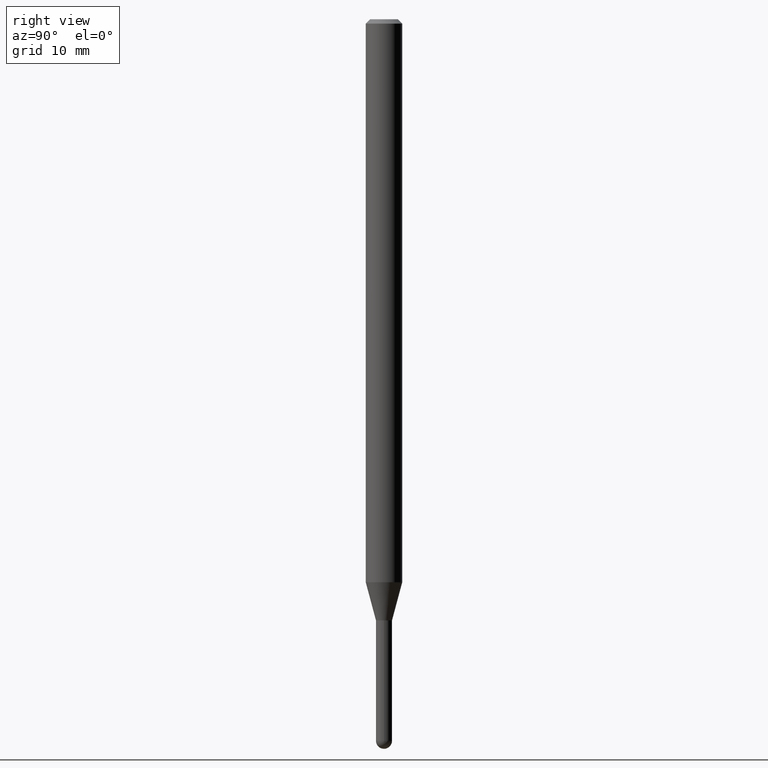
[diagram: clean part render]
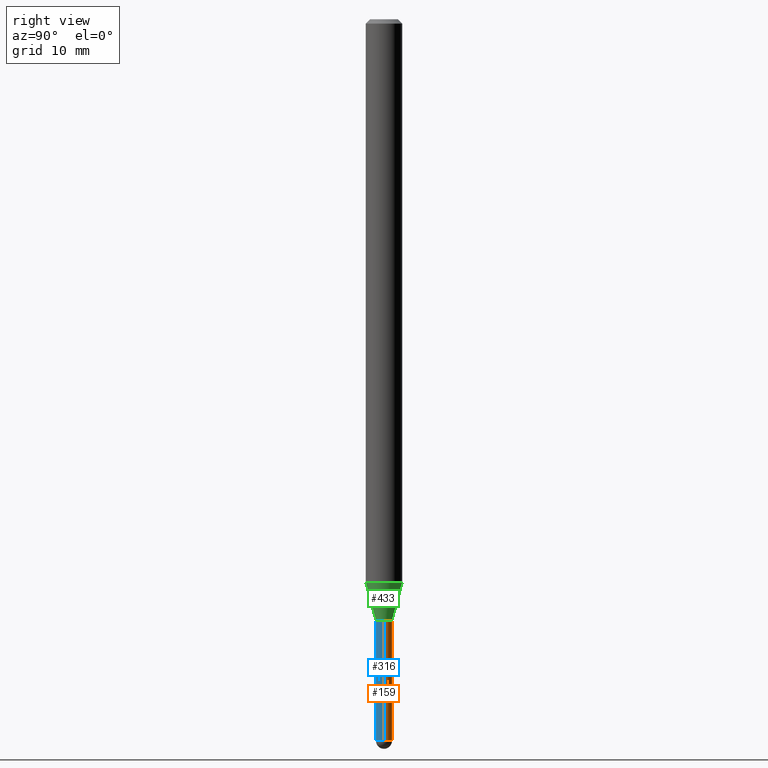
[diagram: same view with three faces highlighted in distinct colors, each labeled with its STEP entity id]
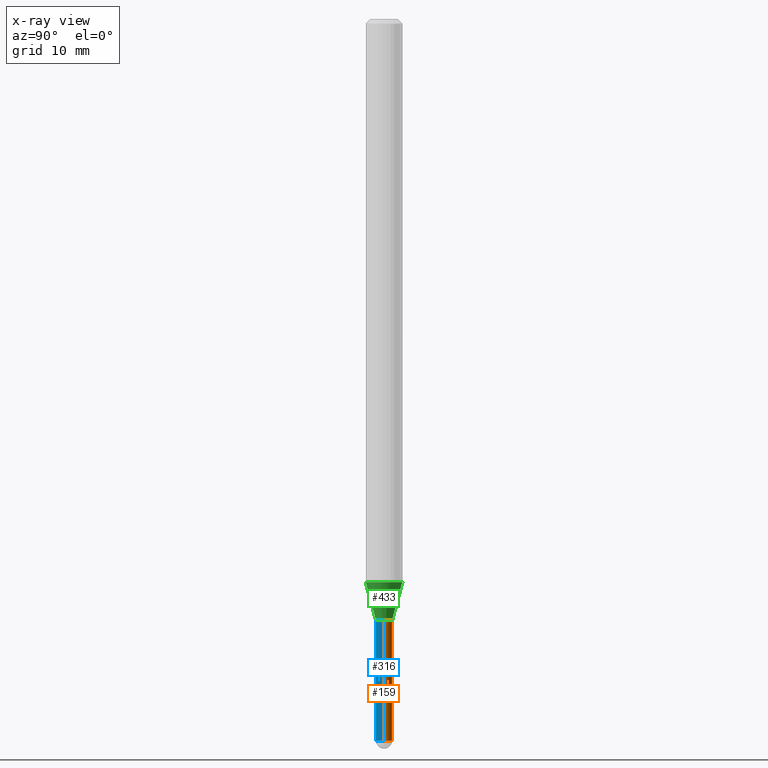
[diagram: x-ray of the same camera — body ghosted, the three highlighted faces saturated]
A machine part, right view with three faces highlighted in distinct colors.
The next image is the same camera in x-ray (body ghosted, the three faces saturated) — at least one of them is partly hidden behind the body in this view.
Their STEP definitions:

[orange] entity #159 — the highlighted cylindrical surface (edge-blend (fillet) strip) has radius 0.6985 mm, axis along (-0, 0, 1).
#1 = VERTEX_POINT ( 'NONE', #488 ) ;
#16 = EDGE_CURVE ( 'NONE', #385, #1, #101, .T. ) ;
#17 = EDGE_LOOP ( 'NONE', ( #133, #444, #333, #289, #85 ) ) ;
#28 = VECTOR ( 'NONE', #188, 39.37007874015748143 ) ;
#36 = CARTESIAN_POINT ( 'NONE',  ( -0.02750000000000000014, -7.717170331819249590E-15, -2.060000000000000053 ) ) ;
#41 = AXIS2_PLACEMENT_3D ( 'NONE', #511, #463, #162 ) ;
#54 = AXIS2_PLACEMENT_3D ( 'NONE', #498, #379, #372 ) ;
#85 = ORIENTED_EDGE ( 'NONE', *, *, #205, .T. ) ;
#92 = EDGE_CURVE ( 'NONE', #1, #292, #407, .T. ) ;
#99 = CARTESIAN_POINT ( 'NONE',  ( 0.02750000000000000014, -8.104601057789650990E-15, -2.472499999999999254 ) ) ;
#101 = LINE ( 'NONE', #181, #28 ) ;
#109 = DIRECTION ( 'NONE',  ( 1.000000000000000000, -6.982962677686266711E-15, 4.876176775795935793E-29 ) ) ;
#133 = ORIENTED_EDGE ( 'NONE', *, *, #478, .T. ) ;
#159 = ADVANCED_FACE ( 'NONE', ( #493 ), #184, .T. ) ;
#161 = VERTEX_POINT ( 'NONE', #266 ) ;
#162 = DIRECTION ( 'NONE',  ( 1.000000000000000000, -6.982962677686279332E-15, 0.000000000000000000 ) ) ;
#169 = CARTESIAN_POINT ( 'NONE',  ( -0.02750000000000000014, 1.953992523340275521E-16, -1.352707149820099181E-30 ) ) ;
#174 = DIRECTION ( 'NONE',  ( 1.000000000000000000, -6.982962677686279332E-15, 0.000000000000000000 ) ) ;
#181 = CARTESIAN_POINT ( 'NONE',  ( 0.02750000000000000014, -1.920314736363723444E-16, 1.340948613343882413E-30 ) ) ;
#184 = CYLINDRICAL_SURFACE ( 'NONE', #423, 0.02750000000000000014 ) ;
#188 = DIRECTION ( 'NONE',  ( -2.445468806185136877E-29, 3.491481338843145188E-15, 1.000000000000000000 ) ) ;
#203 = CIRCLE ( 'NONE', #458, 0.02750000000000000014 ) ;
#205 = EDGE_CURVE ( 'NONE', #385, #480, #438, .T. ) ;
#219 = EDGE_CURVE ( 'NONE', #161, #292, #281, .T. ) ;
#266 = CARTESIAN_POINT ( 'NONE',  ( -0.02750000000000000014, -7.717170331819249590E-15, -2.472499999999999254 ) ) ;
#281 = LINE ( 'NONE', #169, #356 ) ;
#289 = ORIENTED_EDGE ( 'NONE', *, *, #16, .F. ) ;
#292 = VERTEX_POINT ( 'NONE', #36 ) ;
#309 = CARTESIAN_POINT ( 'NONE',  ( 0.000000000000000000, 0.000000000000000000, 0.000000000000000000 ) ) ;
#332 = DIRECTION ( 'NONE',  ( -2.445468806185136597E-29, 3.491481338843145583E-15, 1.000000000000000000 ) ) ;
#333 = ORIENTED_EDGE ( 'NONE', *, *, #92, .F. ) ;
#334 = CARTESIAN_POINT ( 'NONE',  ( 6.046421623292748621E-29, -8.632687610289675147E-15, -2.472499999999999254 ) ) ;
#356 = VECTOR ( 'NONE', #476, 39.37007874015748143 ) ;
#372 = DIRECTION ( 'NONE',  ( 1.000000000000000000, -6.982962677686279332E-15, 0.000000000000000000 ) ) ;
#379 = DIRECTION ( 'NONE',  ( -2.445468806185136597E-29, 3.491481338843145583E-15, 1.000000000000000000 ) ) ;
#385 = VERTEX_POINT ( 'NONE', #99 ) ;
#407 = CIRCLE ( 'NONE', #54, 0.02750000000000000014 ) ;
#423 = AXIS2_PLACEMENT_3D ( 'NONE', #309, #460, #109 ) ;
#438 = CIRCLE ( 'NONE', #41, 0.02750000000000000014 ) ;
#443 = CARTESIAN_POINT ( 'NONE',  ( 1.920314736364331113E-16, 0.02749999999999141673, -2.472499999999999254 ) ) ;
#444 = ORIENTED_EDGE ( 'NONE', *, *, #219, .T. ) ;
#458 = AXIS2_PLACEMENT_3D ( 'NONE', #334, #332, #174 ) ;
#460 = DIRECTION ( 'NONE',  ( -2.445468806185136597E-29, 3.491481338843145583E-15, 1.000000000000000000 ) ) ;
#463 = DIRECTION ( 'NONE',  ( -2.445468806185136597E-29, 3.491481338843145583E-15, 1.000000000000000000 ) ) ;
#476 = DIRECTION ( 'NONE',  ( -2.445468806185136877E-29, 3.491481338843145188E-15, 1.000000000000000000 ) ) ;
#478 = EDGE_CURVE ( 'NONE', #480, #161, #203, .T. ) ;
#480 = VERTEX_POINT ( 'NONE', #443 ) ;
#488 = CARTESIAN_POINT ( 'NONE',  ( 0.02750000000000000014, -7.384483031653253552E-15, -2.060000000000000053 ) ) ;
#493 = FACE_OUTER_BOUND ( 'NONE', #17, .T. ) ;
#498 = CARTESIAN_POINT ( 'NONE',  ( 5.037665740741381905E-29, -7.192451558016880271E-15, -2.060000000000000053 ) ) ;
#511 = CARTESIAN_POINT ( 'NONE',  ( 6.046421623292748621E-29, -8.632687610289675147E-15, -2.472499999999999254 ) ) ;

[blue] entity #316 — the highlighted cylindrical surface (edge-blend (fillet) strip) has radius 0.6985 mm, axis along (-0, 0, 1).
#1 = VERTEX_POINT ( 'NONE', #488 ) ;
#16 = EDGE_CURVE ( 'NONE', #385, #1, #101, .T. ) ;
#28 = VECTOR ( 'NONE', #188, 39.37007874015748143 ) ;
#36 = CARTESIAN_POINT ( 'NONE',  ( -0.02750000000000000014, -7.717170331819249590E-15, -2.060000000000000053 ) ) ;
#50 = CARTESIAN_POINT ( 'NONE',  ( 0.000000000000000000, 0.000000000000000000, 0.000000000000000000 ) ) ;
#51 = ORIENTED_EDGE ( 'NONE', *, *, #78, .T. ) ;
#74 = DIRECTION ( 'NONE',  ( 1.000000000000000000, -6.982962677686279332E-15, 0.000000000000000000 ) ) ;
#78 = EDGE_CURVE ( 'NONE', #360, #385, #456, .T. ) ;
#99 = CARTESIAN_POINT ( 'NONE',  ( 0.02750000000000000014, -8.104601057789650990E-15, -2.472499999999999254 ) ) ;
#101 = LINE ( 'NONE', #181, #28 ) ;
#104 = DIRECTION ( 'NONE',  ( -2.445468806185136597E-29, 3.491481338843145583E-15, 1.000000000000000000 ) ) ;
#126 = DIRECTION ( 'NONE',  ( 1.000000000000000000, -6.982962677686279332E-15, 0.000000000000000000 ) ) ;
#131 = ORIENTED_EDGE ( 'NONE', *, *, #16, .T. ) ;
#158 = DIRECTION ( 'NONE',  ( -2.445468806185136597E-29, 3.491481338843145583E-15, 1.000000000000000000 ) ) ;
#161 = VERTEX_POINT ( 'NONE', #266 ) ;
#166 = CARTESIAN_POINT ( 'NONE',  ( 6.046421623292748621E-29, -8.632687610289675147E-15, -2.472499999999999254 ) ) ;
#169 = CARTESIAN_POINT ( 'NONE',  ( -0.02750000000000000014, 1.953992523340275521E-16, -1.352707149820099181E-30 ) ) ;
#175 = EDGE_LOOP ( 'NONE', ( #251, #362, #51, #131, #430 ) ) ;
#181 = CARTESIAN_POINT ( 'NONE',  ( 0.02750000000000000014, -1.920314736363723444E-16, 1.340948613343882413E-30 ) ) ;
#187 = CIRCLE ( 'NONE', #390, 0.02750000000000000014 ) ;
#188 = DIRECTION ( 'NONE',  ( -2.445468806185136877E-29, 3.491481338843145188E-15, 1.000000000000000000 ) ) ;
#202 = DIRECTION ( 'NONE',  ( -2.445468806185136597E-29, 3.491481338843145583E-15, 1.000000000000000000 ) ) ;
#219 = EDGE_CURVE ( 'NONE', #161, #292, #281, .T. ) ;
#232 = EDGE_CURVE ( 'NONE', #161, #360, #187, .T. ) ;
#233 = CYLINDRICAL_SURFACE ( 'NONE', #346, 0.02750000000000000014 ) ;
#251 = ORIENTED_EDGE ( 'NONE', *, *, #219, .F. ) ;
#261 = DIRECTION ( 'NONE',  ( -2.445468806185136597E-29, 3.491481338843145583E-15, 1.000000000000000000 ) ) ;
#266 = CARTESIAN_POINT ( 'NONE',  ( -0.02750000000000000014, -7.717170331819249590E-15, -2.472499999999999254 ) ) ;
#276 = AXIS2_PLACEMENT_3D ( 'NONE', #348, #261, #74 ) ;
#281 = LINE ( 'NONE', #169, #356 ) ;
#282 = FACE_OUTER_BOUND ( 'NONE', #175, .T. ) ;
#288 = DIRECTION ( 'NONE',  ( 1.000000000000000000, -6.982962677686266711E-15, 4.876176775795935793E-29 ) ) ;
#292 = VERTEX_POINT ( 'NONE', #36 ) ;
#299 = CARTESIAN_POINT ( 'NONE',  ( -1.953992523339674261E-16, -0.02750000000000868070, -2.472499999999999254 ) ) ;
#316 = ADVANCED_FACE ( 'NONE', ( #282 ), #233, .T. ) ;
#330 = CIRCLE ( 'NONE', #339, 0.02750000000000000014 ) ;
#339 = AXIS2_PLACEMENT_3D ( 'NONE', #454, #104, #484 ) ;
#346 = AXIS2_PLACEMENT_3D ( 'NONE', #50, #202, #288 ) ;
#348 = CARTESIAN_POINT ( 'NONE',  ( 6.046421623292748621E-29, -8.632687610289675147E-15, -2.472499999999999254 ) ) ;
#356 = VECTOR ( 'NONE', #476, 39.37007874015748143 ) ;
#360 = VERTEX_POINT ( 'NONE', #299 ) ;
#362 = ORIENTED_EDGE ( 'NONE', *, *, #232, .T. ) ;
#385 = VERTEX_POINT ( 'NONE', #99 ) ;
#390 = AXIS2_PLACEMENT_3D ( 'NONE', #166, #158, #126 ) ;
#430 = ORIENTED_EDGE ( 'NONE', *, *, #496, .F. ) ;
#454 = CARTESIAN_POINT ( 'NONE',  ( 5.037665740741381905E-29, -7.192451558016880271E-15, -2.060000000000000053 ) ) ;
#456 = CIRCLE ( 'NONE', #276, 0.02750000000000000014 ) ;
#476 = DIRECTION ( 'NONE',  ( -2.445468806185136877E-29, 3.491481338843145188E-15, 1.000000000000000000 ) ) ;
#484 = DIRECTION ( 'NONE',  ( 1.000000000000000000, -6.982962677686279332E-15, 0.000000000000000000 ) ) ;
#488 = CARTESIAN_POINT ( 'NONE',  ( 0.02750000000000000014, -7.384483031653253552E-15, -2.060000000000000053 ) ) ;
#496 = EDGE_CURVE ( 'NONE', #292, #1, #330, .T. ) ;

[green] entity #433 — the highlighted conical surface has half-angle 15 deg.
#2 = AXIS2_PLACEMENT_3D ( 'NONE', #132, #12, #290 ) ;
#12 = DIRECTION ( 'NONE',  ( -2.445457341332455997E-29, 3.491497757164723116E-15, 1.000000000000000000 ) ) ;
#26 = DIRECTION ( 'NONE',  ( -6.982962677686265922E-15, -1.000000000000000000, 0.000000000000000000 ) ) ;
#37 = ORIENTED_EDGE ( 'NONE', *, *, #465, .T. ) ;
#39 = CONICAL_SURFACE ( 'NONE', #2, 0.02750000000000019790, 0.2617993877991579010 ) ;
#47 = CIRCLE ( 'NONE', #501, 0.06250000000000000000 ) ;
#59 = FACE_OUTER_BOUND ( 'NONE', #468, .T. ) ;
#82 = VERTEX_POINT ( 'NONE', #226 ) ;
#83 = ORIENTED_EDGE ( 'NONE', *, *, #338, .F. ) ;
#84 = CARTESIAN_POINT ( 'NONE',  ( 4.718212136549045981E-29, -6.736419733910545190E-15, -1.929378221735094545 ) ) ;
#96 = LINE ( 'NONE', #263, #136 ) ;
#107 = CARTESIAN_POINT ( 'NONE',  ( 5.037642123144859404E-29, -7.192485379759330660E-15, -2.060000000000000053 ) ) ;
#111 = DIRECTION ( 'NONE',  ( -2.445457341332455997E-29, 3.491497757164723116E-15, 1.000000000000000000 ) ) ;
#127 = ORIENTED_EDGE ( 'NONE', *, *, #238, .F. ) ;
#132 = CARTESIAN_POINT ( 'NONE',  ( 5.037642123144859404E-29, -7.192485379759330660E-15, -2.060000000000000053 ) ) ;
#136 = VECTOR ( 'NONE', #216, 39.37007874015748143 ) ;
#142 = CARTESIAN_POINT ( 'NONE',  ( -1.920314736363233118E-16, -0.02750000000000739006, -2.060000000000000053 ) ) ;
#144 = CIRCLE ( 'NONE', #221, 0.02750000000000019790 ) ;
#151 = EDGE_CURVE ( 'NONE', #391, #82, #144, .T. ) ;
#192 = DIRECTION ( 'NONE',  ( -1.807323732225381810E-15, -0.2588190451025255689, 0.9659258262890669799 ) ) ;
#207 = LINE ( 'NONE', #248, #307 ) ;
#216 = DIRECTION ( 'NONE',  ( 1.839019923739652775E-15, 0.2588190451025323413, 0.9659258262890650926 ) ) ;
#221 = AXIS2_PLACEMENT_3D ( 'NONE', #107, #111, #26 ) ;
#226 = CARTESIAN_POINT ( 'NONE',  ( 3.197442310920946221E-16, 0.02749999999999300573, -2.060000000000000053 ) ) ;
#238 = EDGE_CURVE ( 'NONE', #241, #388, #47, .T. ) ;
#241 = VERTEX_POINT ( 'NONE', #320 ) ;
#246 = DIRECTION ( 'NONE',  ( -6.982962677686265922E-15, -1.000000000000000000, 4.370956789862821150E-15 ) ) ;
#248 = CARTESIAN_POINT ( 'NONE',  ( -1.920314736363233118E-16, -0.02750000000000739006, -2.060000000000000053 ) ) ;
#257 = CARTESIAN_POINT ( 'NONE',  ( 4.440892098501095534E-16, 0.06249999999999324846, -1.929378221735094767 ) ) ;
#263 = CARTESIAN_POINT ( 'NONE',  ( 1.953992523340792964E-16, 0.02749999999999300573, -2.060000000000000053 ) ) ;
#290 = DIRECTION ( 'NONE',  ( -6.982962677686265922E-15, -1.000000000000000000, 0.000000000000000000 ) ) ;
#307 = VECTOR ( 'NONE', #192, 39.37007874015748854 ) ;
#320 = CARTESIAN_POINT ( 'NONE',  ( -4.364351673553446829E-16, -0.06250000000000677236, -1.929378221735094323 ) ) ;
#338 = EDGE_CURVE ( 'NONE', #391, #241, #207, .T. ) ;
#355 = DIRECTION ( 'NONE',  ( -2.445457341332455997E-29, 3.491497757164723116E-15, 1.000000000000000000 ) ) ;
#388 = VERTEX_POINT ( 'NONE', #257 ) ;
#391 = VERTEX_POINT ( 'NONE', #142 ) ;
#410 = ORIENTED_EDGE ( 'NONE', *, *, #151, .T. ) ;
#433 = ADVANCED_FACE ( 'NONE', ( #59 ), #39, .T. ) ;
#465 = EDGE_CURVE ( 'NONE', #82, #388, #96, .T. ) ;
#468 = EDGE_LOOP ( 'NONE', ( #410, #37, #127, #83 ) ) ;
#501 = AXIS2_PLACEMENT_3D ( 'NONE', #84, #355, #246 ) ;